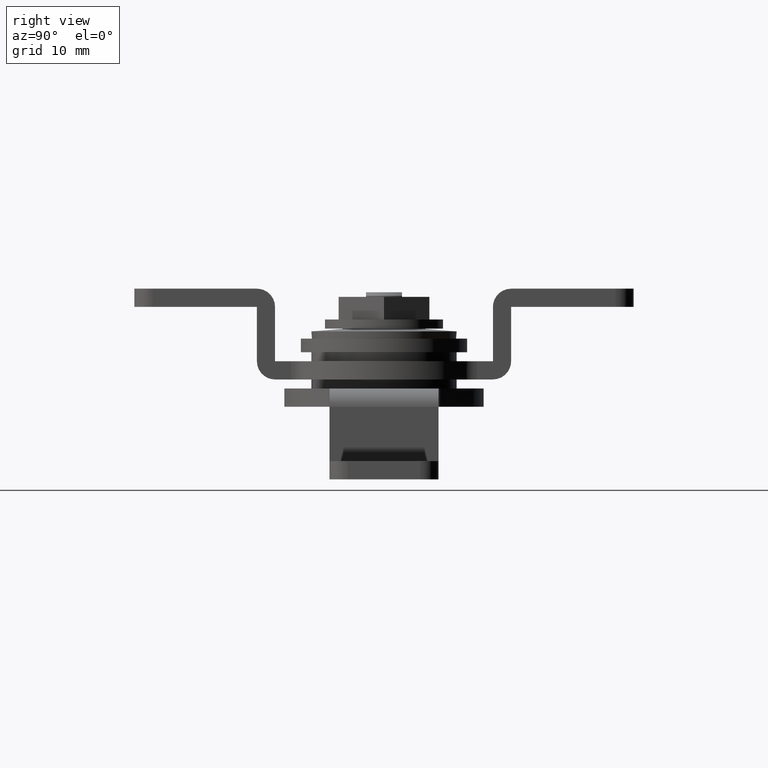
[diagram: clean part render]
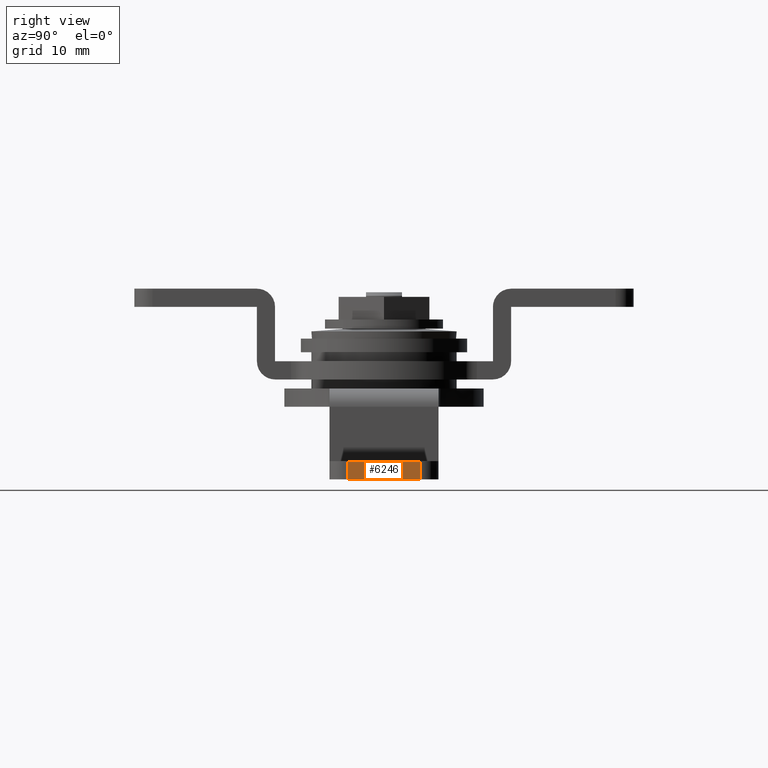
[diagram: same view with one face highlighted and labeled with its STEP entity id]
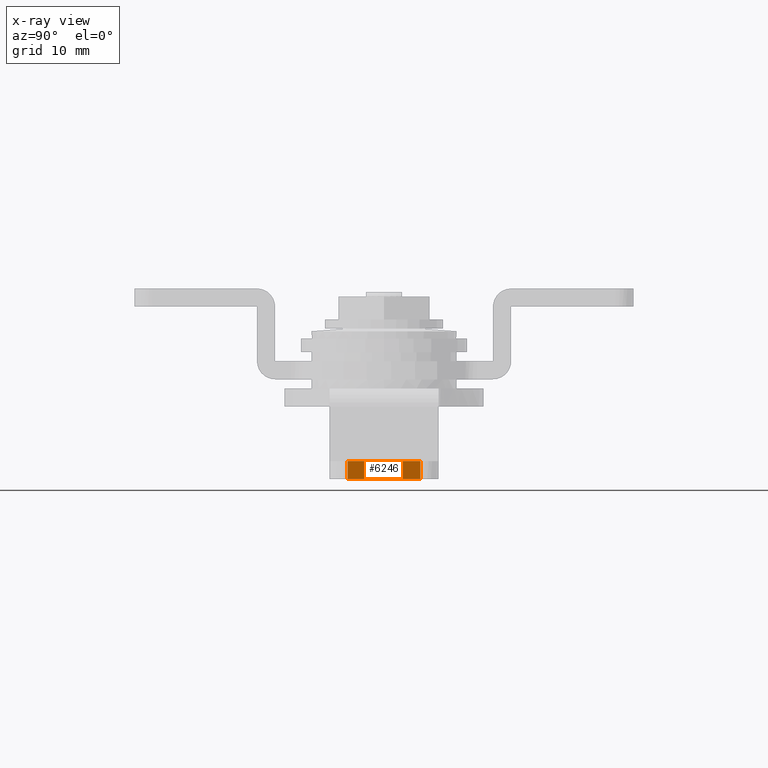
[diagram: x-ray of the same camera — body ghosted, the highlighted face saturated]
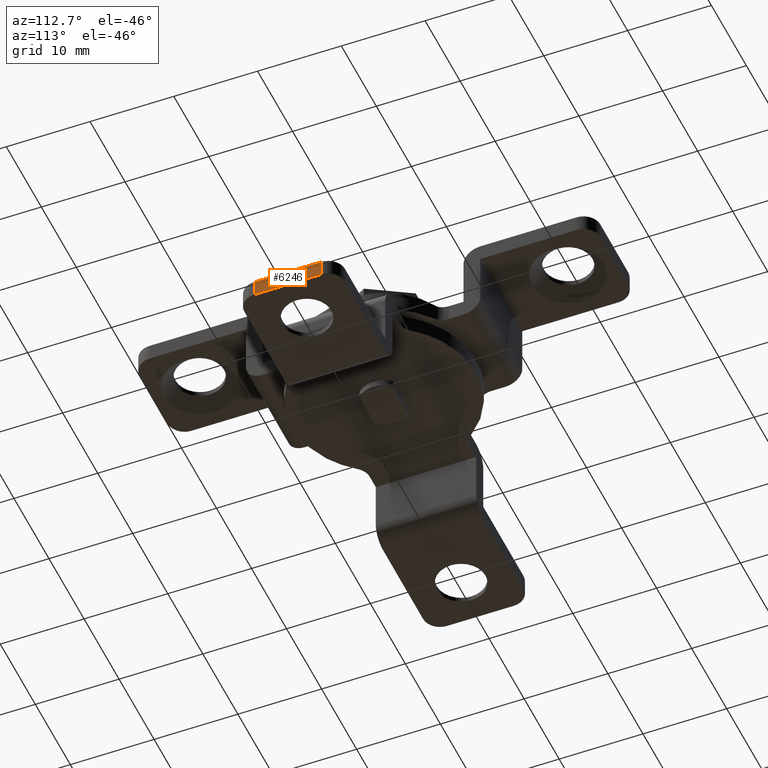
[diagram: same view with one face highlighted and labeled with its STEP entity id]
A machine part, right view. The second image highlights one B-rep face of the part: STEP entity #6246.
The next image is the same camera in x-ray: the body ghosted, the highlighted face saturated — about 0% of this face is hidden behind the body in this view.
A second angle (auxiliary view) of the same face is appended — the face is thin or edge-on in the first view.
In plain terms, the highlighted face is a freeform B-spline surface patch.
Its self-contained STEP definition (entity closure, byte-faithful):
#5958=CARTESIAN_POINT('',(27.500000000000000,4.0,0.0));
#5959=VERTEX_POINT('',#5958);
#5973=CARTESIAN_POINT('',(27.500000000000000,-4.0,0.0));
#5974=VERTEX_POINT('',#5973);
#5975=CARTESIAN_POINT('',(27.500000000000000,4.0,0.0));
#5976=CARTESIAN_POINT('',(27.500000000000000,-4.0,0.0));
#5977=QUASI_UNIFORM_CURVE('',1,(#5975,#5976),.UNSPECIFIED.,.F.,.U.);
#5978=EDGE_CURVE('',#5959,#5974,#5977,.T.);
#6059=CARTESIAN_POINT('',(27.500000000000000,-4.0,2.0));
#6060=VERTEX_POINT('',#6059);
#6080=CARTESIAN_POINT('',(27.500000000000000,-4.0,2.0));
#6081=CARTESIAN_POINT('',(27.500000000000000,-4.0,0.0));
#6082=QUASI_UNIFORM_CURVE('',1,(#6080,#6081),.UNSPECIFIED.,.F.,.U.);
#6083=EDGE_CURVE('',#6060,#5974,#6082,.T.);
#6102=CARTESIAN_POINT('',(27.500000000000000,4.0,2.0));
#6103=VERTEX_POINT('',#6102);
#6119=CARTESIAN_POINT('',(27.500000000000000,4.0,0.0));
#6120=CARTESIAN_POINT('',(27.500000000000000,4.0,2.0));
#6121=QUASI_UNIFORM_CURVE('',1,(#6119,#6120),.UNSPECIFIED.,.F.,.U.);
#6122=EDGE_CURVE('',#5959,#6103,#6121,.T.);
#6231=CARTESIAN_POINT('',(27.500000000000000,-4.399599984494448,-0.099899996123612));
#6232=CARTESIAN_POINT('',(27.500000000000000,-4.399599984494448,2.099900049767792));
#6233=CARTESIAN_POINT('',(27.500000000000000,4.399600199071169,-0.099899996123612));
#6234=CARTESIAN_POINT('',(27.500000000000000,4.399600199071169,2.099900049767792));
#6235=B_SPLINE_SURFACE_WITH_KNOTS('',1,1,((#6231,#6233),(#6232,#6234)),.UNSPECIFIED.,.F.,.F.,.U.,(2,2),(2,2),(0.0,2.199800045891404),(0.0,8.799200183565617),.UNSPECIFIED.);
#6236=ORIENTED_EDGE('',*,*,#5978,.F.);
#6237=ORIENTED_EDGE('',*,*,#6122,.T.);
#6238=CARTESIAN_POINT('',(27.500000000000000,4.0,2.0));
#6239=CARTESIAN_POINT('',(27.500000000000000,-4.0,2.0));
#6240=QUASI_UNIFORM_CURVE('',1,(#6238,#6239),.UNSPECIFIED.,.F.,.U.);
#6241=EDGE_CURVE('',#6103,#6060,#6240,.T.);
#6242=ORIENTED_EDGE('',*,*,#6241,.T.);
#6243=ORIENTED_EDGE('',*,*,#6083,.T.);
#6244=EDGE_LOOP('',(#6236,#6237,#6242,#6243));
#6245=FACE_OUTER_BOUND('',#6244,.T.);
#6246=ADVANCED_FACE('',(#6245),#6235,.F.);